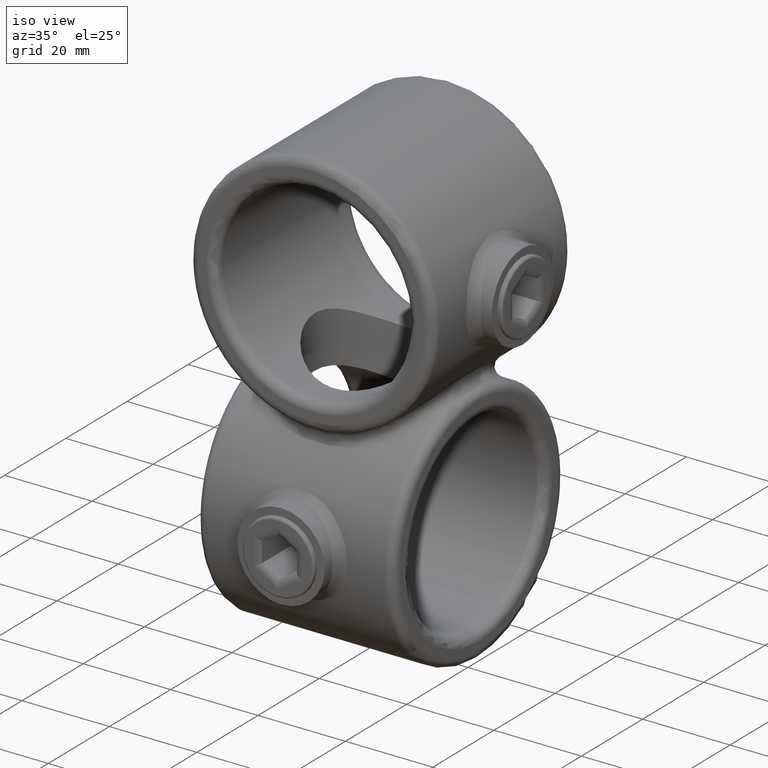
[diagram: clean part render]
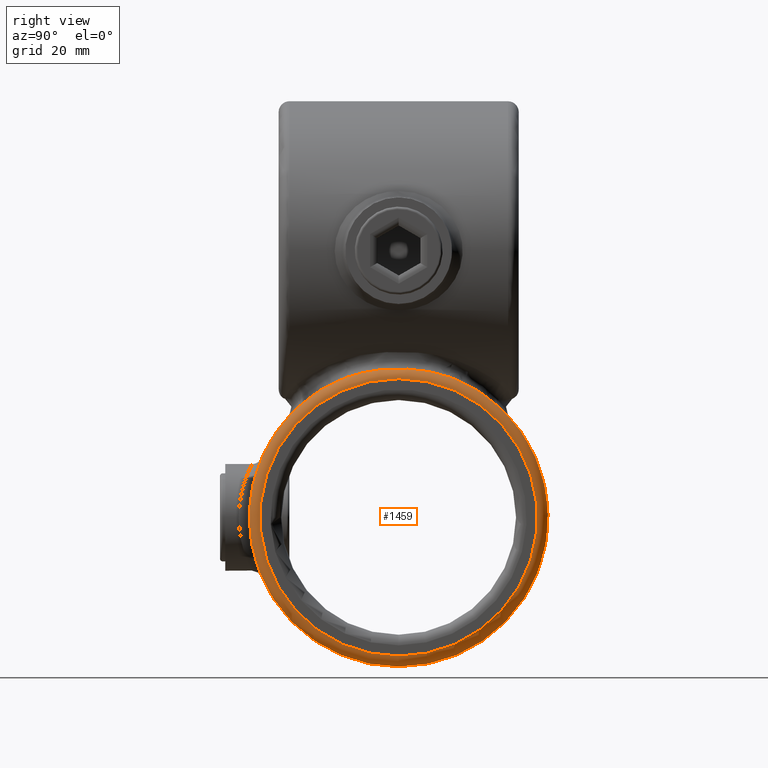
[diagram: tour spotlight — one face highlighted and labeled with its STEP entity id]
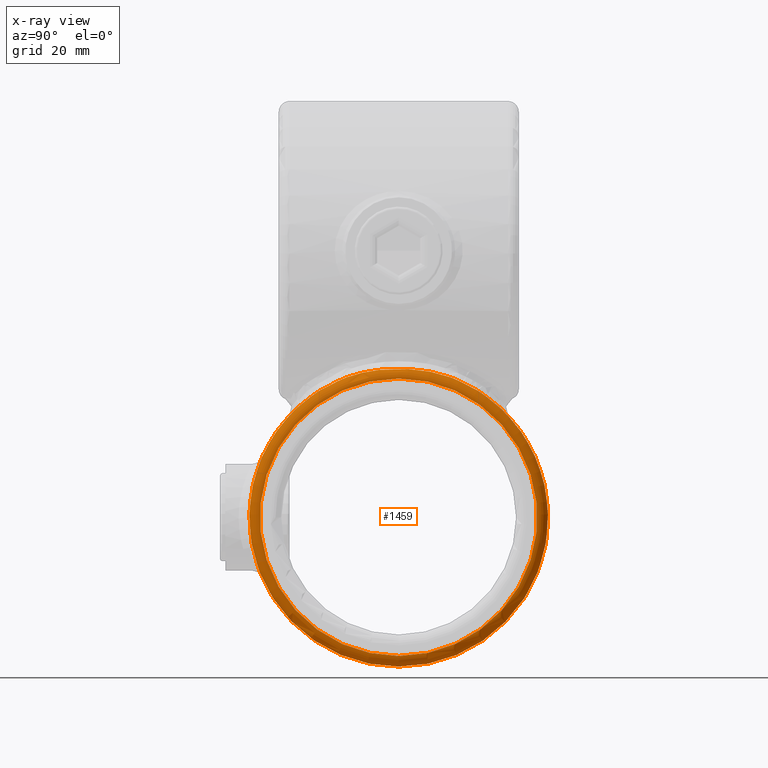
[diagram: x-ray of the same camera — body ghosted, this tour face saturated]
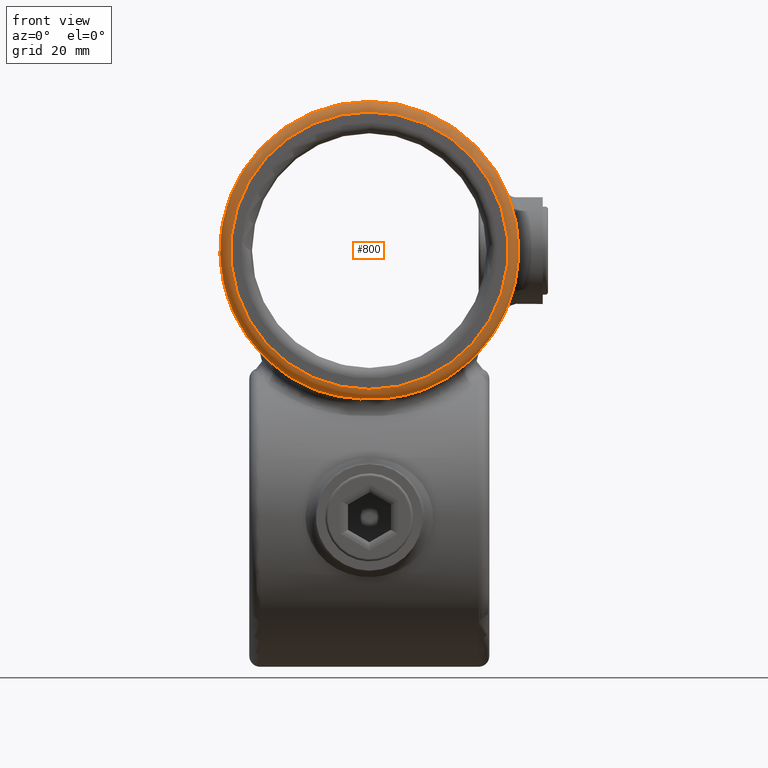
[diagram: tour spotlight — one face highlighted and labeled with its STEP entity id]
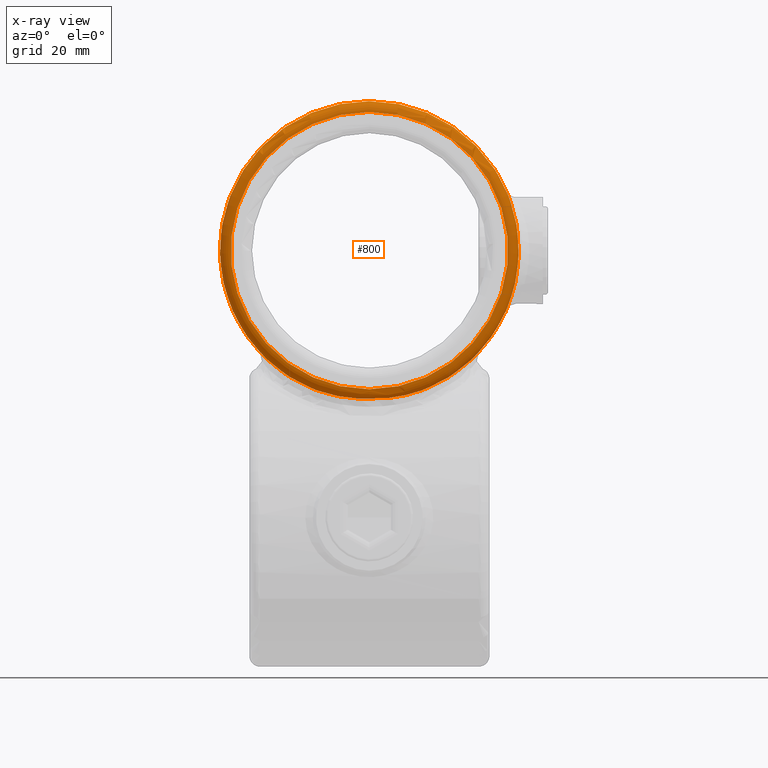
[diagram: x-ray of the same camera — body ghosted, this tour face saturated]
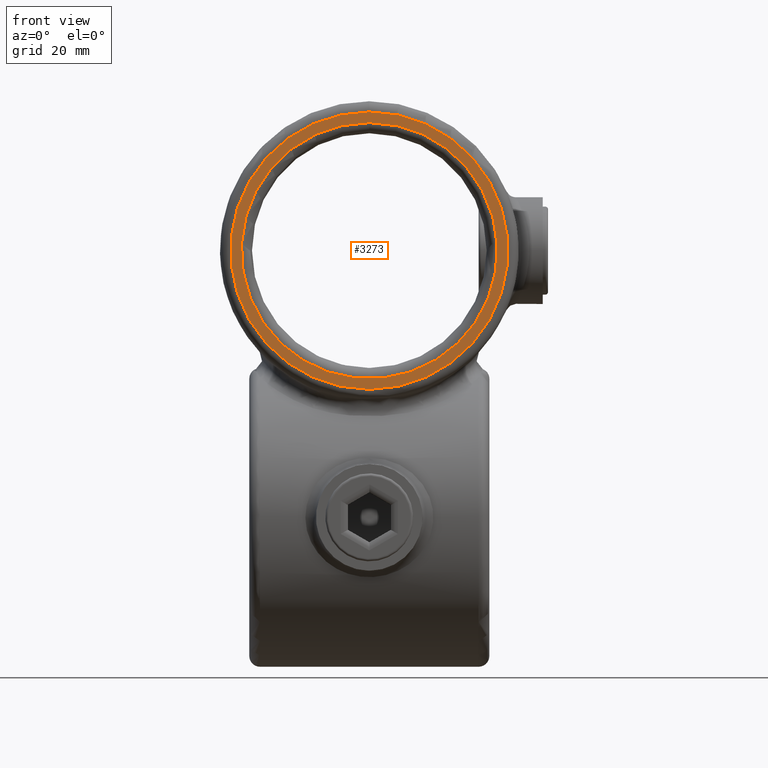
[diagram: tour spotlight — one face highlighted and labeled with its STEP entity id]
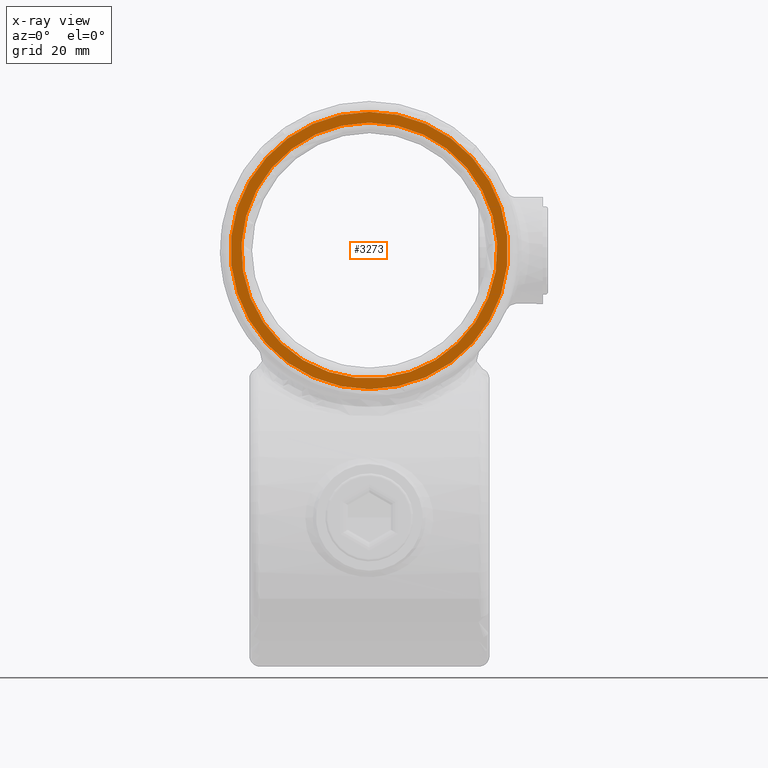
[diagram: x-ray of the same camera — body ghosted, this tour face saturated]
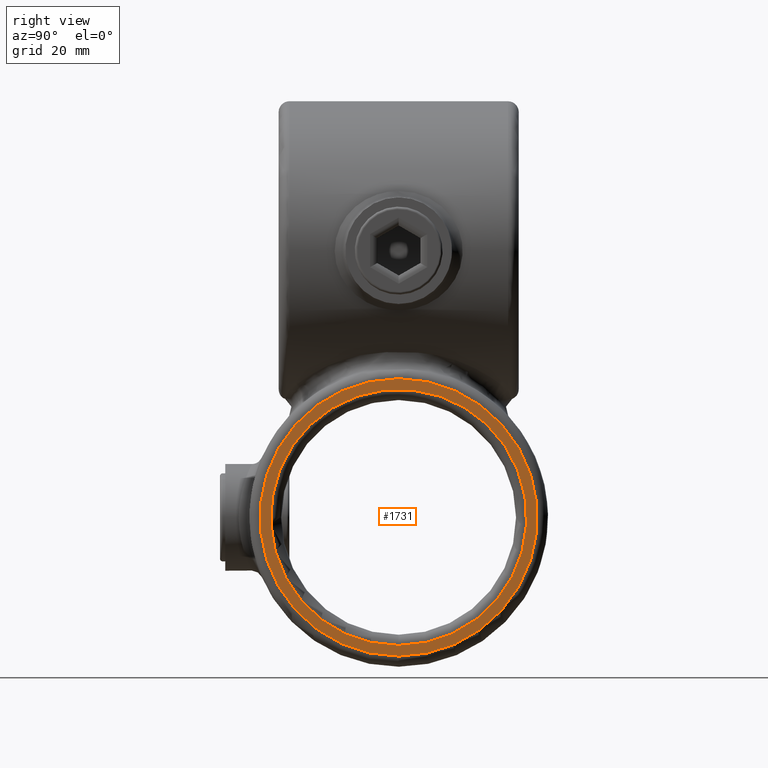
[diagram: tour spotlight — one face highlighted and labeled with its STEP entity id]
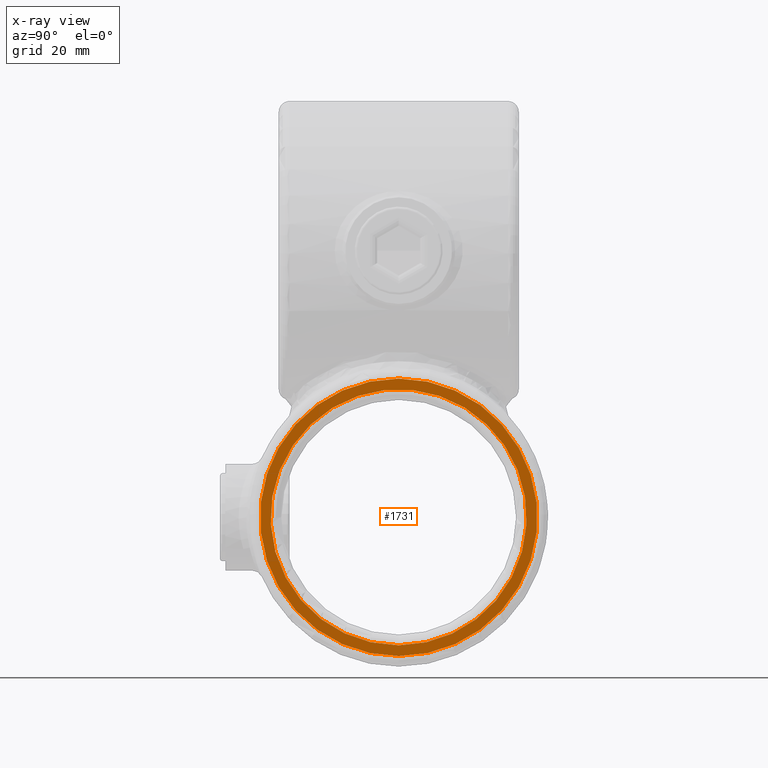
[diagram: x-ray of the same camera — body ghosted, this tour face saturated]
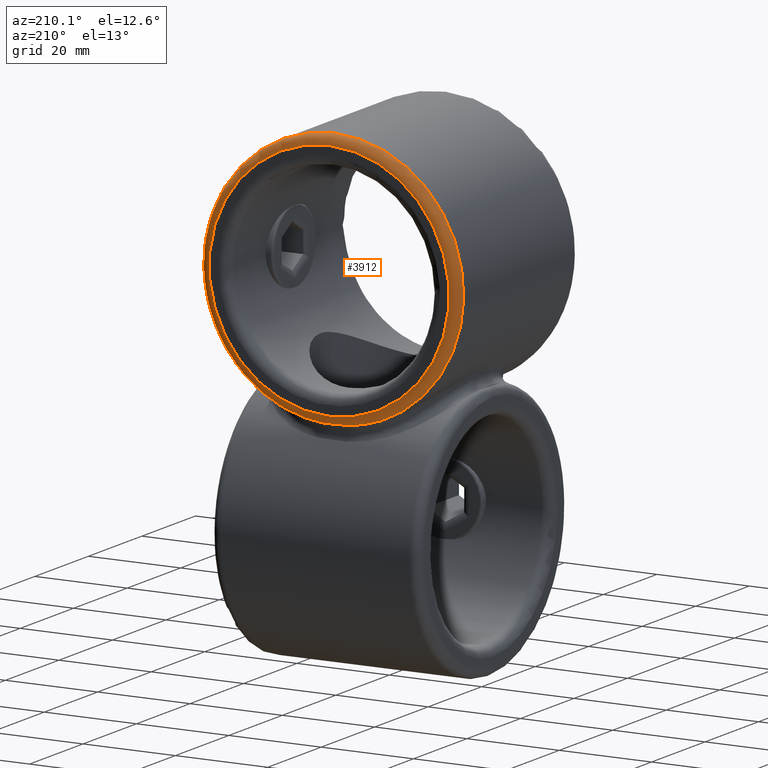
[diagram: tour spotlight — one face highlighted and labeled with its STEP entity id]
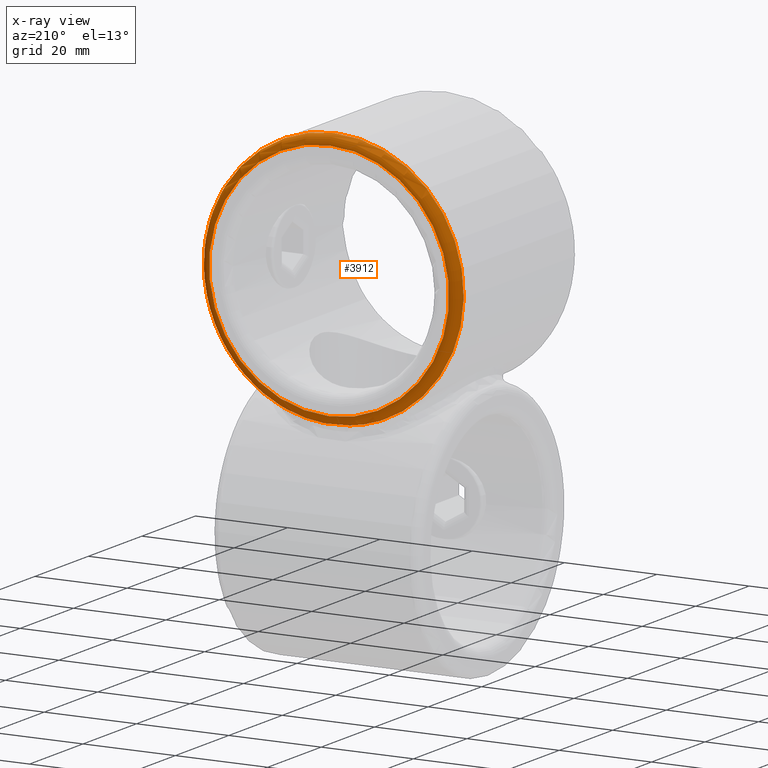
[diagram: x-ray of the same camera — body ghosted, this tour face saturated]
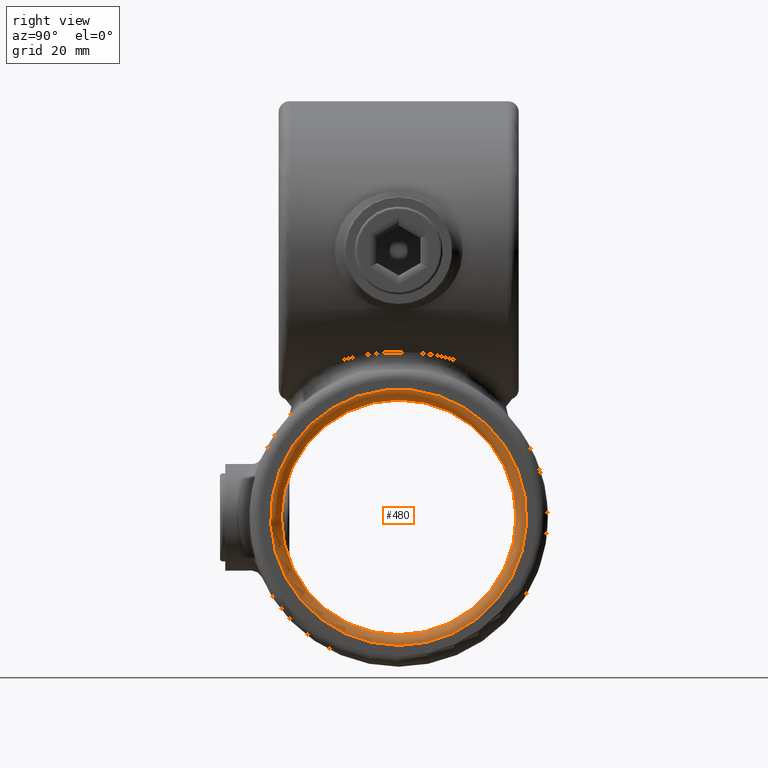
[diagram: tour spotlight — one face highlighted and labeled with its STEP entity id]
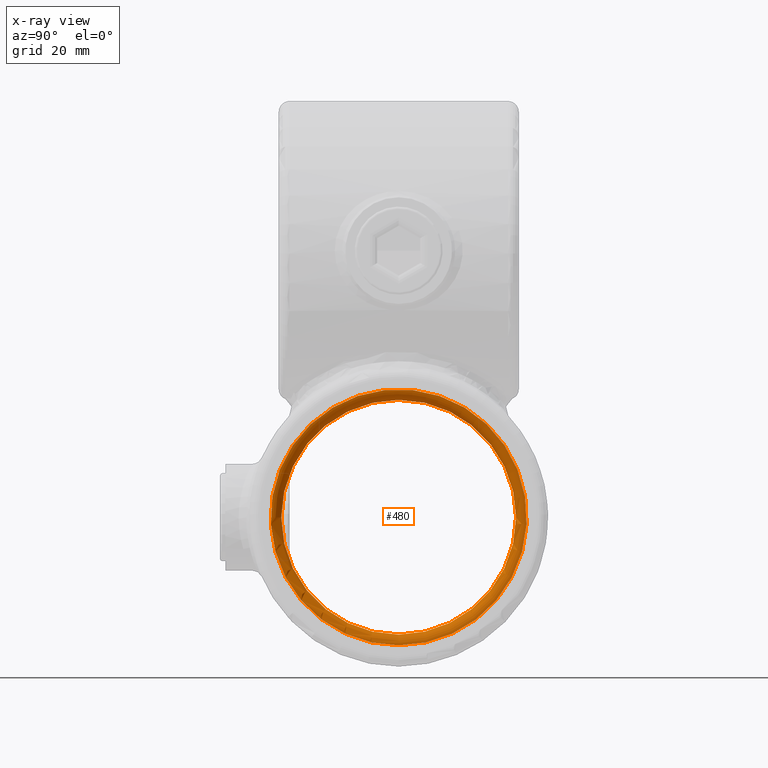
[diagram: x-ray of the same camera — body ghosted, this tour face saturated]
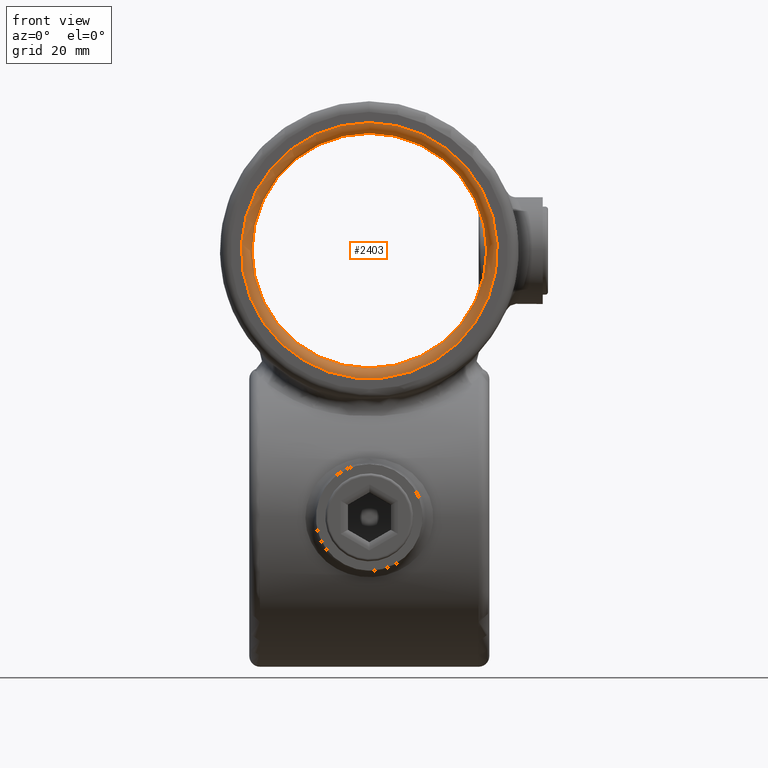
[diagram: tour spotlight — one face highlighted and labeled with its STEP entity id]
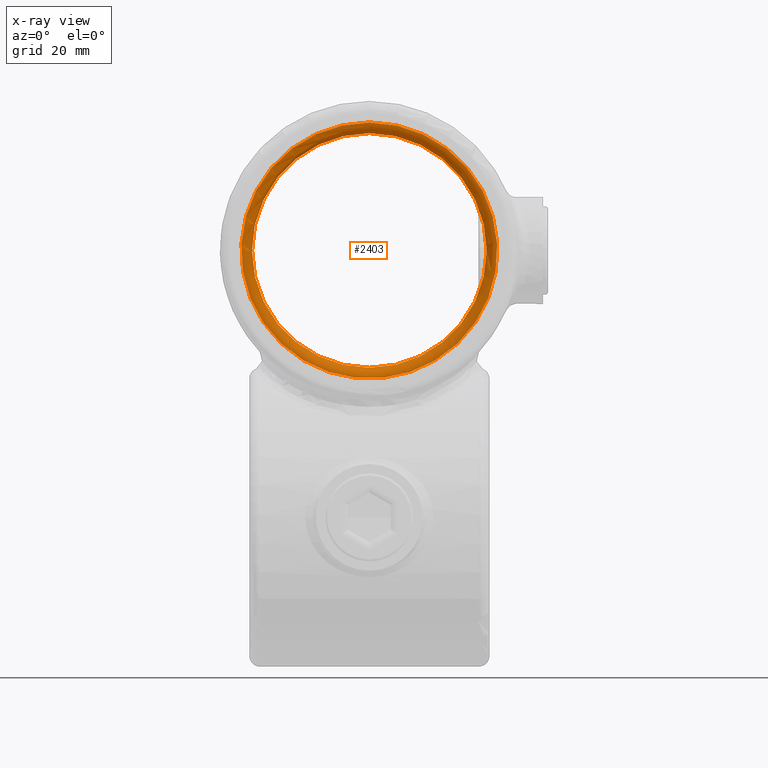
[diagram: x-ray of the same camera — body ghosted, this tour face saturated]
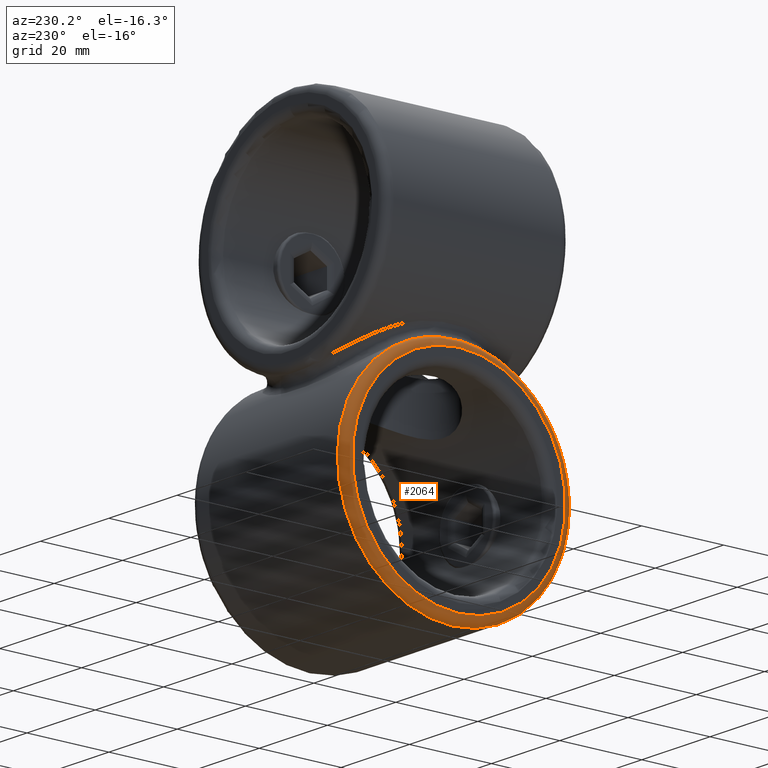
[diagram: tour spotlight — one face highlighted and labeled with its STEP entity id]
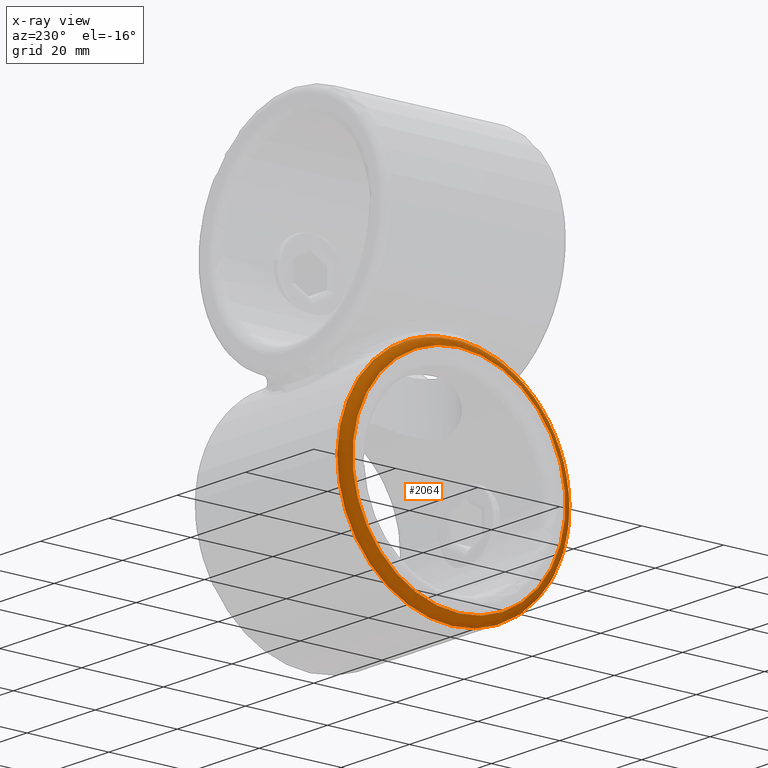
[diagram: x-ray of the same camera — body ghosted, this tour face saturated]
A machine part: a face-by-face anatomy tour. The part has 79 B-rep faces; the first image is the clean iso view, then the 8 largest visible faces are spotlighted one at a time (largest first), each with its STEP entity span.

Face 1 — right view, entity #1459. An x-ray twin of the same camera follows (body ghosted, this face saturated) — the face is partly hidden behind the body. In plain terms, the highlighted toroidal blend (fillet) surface has major radius 26 mm and minor (blend) radius 2 mm.
Definition (entity closure, byte-faithful):
#100 = EDGE_CURVE ( 'NONE', #1247, #2336, #350, .T. ) ;
#121 = DIRECTION ( 'NONE',  ( 0.000000000000000000, 0.000000000000000000, -1.000000000000000000 ) ) ;
#350 = B_SPLINE_CURVE_WITH_KNOTS ( 'NONE', 3,
 ( #3429, #2814, #372, #2578, #2897, #3808, #3837, #1039, #3490, #2254, #450, #761, #1318, #1028, #1939, #1305 ),
 .UNSPECIFIED., .F., .F.,
 ( 4, 2, 2, 2, 2, 2, 2, 4 ),
 ( 0.000000000000000000, 0.002511431423528065216, 0.005022862847056127830, 0.01004572569411225566, 0.01255715711764032044, 0.01506858854116838176, 0.01758001996469644307, 0.02009145138822450785 ),
 .UNSPECIFIED. ) ;
#352 = CARTESIAN_POINT ( 'NONE',  ( 20.49999999999999645, 9.814194670230657280, -23.77631637288887489 ) ) ;
#372 = CARTESIAN_POINT ( 'NONE',  ( 20.78735771320225467, 8.244882252040646620, -23.24752961476865210 ) ) ;
#450 = CARTESIAN_POINT ( 'NONE',  ( 21.17632480160088448, -4.168593731485771059, -22.41752804333555460 ) ) ;
#761 = CARTESIAN_POINT ( 'NONE',  ( 21.05975418159540880, -5.820017429702117440, -22.67947664043222034 ) ) ;
#797 = CARTESIAN_POINT ( 'NONE',  ( 22.50000000000000000, 0.000000000000000000, -76.00000000000001421 ) ) ;
#910 = VERTEX_POINT ( 'NONE', #797 ) ;
#937 = DIRECTION ( 'NONE',  ( -1.000000000000000000, -0.000000000000000000, -0.000000000000000000 ) ) ;
#943 = ORIENTED_EDGE ( 'NONE', *, *, #1174, .F. ) ;
#996 = DIRECTION ( 'NONE',  ( 0.000000000000000000, 0.000000000000000000, -1.000000000000000000 ) ) ;
#1028 = CARTESIAN_POINT ( 'NONE',  ( 20.78731485258109046, -8.244901571429144482, -23.24759838540709467 ) ) ;
#1039 = CARTESIAN_POINT ( 'NONE',  ( 21.28477527319128626, -0.8319980424805155650, -22.16040050830346431 ) ) ;
#1174 = EDGE_CURVE ( 'NONE', #1247, #2336, #3108, .T. ) ;
#1247 = VERTEX_POINT ( 'NONE', #352 ) ;
#1305 = CARTESIAN_POINT ( 'NONE',  ( 20.49999999999999645, -9.814194670230948603, -23.77631637288898503 ) ) ;
#1318 = CARTESIAN_POINT ( 'NONE',  ( 20.98486184421767931, -6.636011239654860283, -22.84380077236888695 ) ) ;
#1459 = ADVANCED_FACE ( 'NONE', ( #2222, #2321 ), #1928, .T. ) ;
#1925 = AXIS2_PLACEMENT_3D ( 'NONE', #2525, #3162, #996 ) ;
#1928 = TOROIDAL_SURFACE ( 'NONE', #3959, 26.00000000000000355, 2.000000000000000000 ) ;
#1939 = CARTESIAN_POINT ( 'NONE',  ( 20.66621859428277119, -9.038248175955159169, -23.48591895745369129 ) ) ;
#2092 = EDGE_LOOP ( 'NONE', ( #943, #3607 ) ) ;
#2222 = FACE_OUTER_BOUND ( 'NONE', #2092, .T. ) ;
#2242 = CARTESIAN_POINT ( 'NONE',  ( 20.49999999999999645, -9.814194670230948603, -23.77631637288898503 ) ) ;
#2254 = CARTESIAN_POINT ( 'NONE',  ( 21.21769738735607902, -3.331358731583571764, -22.32020090912197574 ) ) ;
#2258 = CARTESIAN_POINT ( 'NONE',  ( 20.49999999999999645, 0.000000000000000000, -50.00000000000000000 ) ) ;
#2321 = FACE_OUTER_BOUND ( 'NONE', #2360, .T. ) ;
#2336 = VERTEX_POINT ( 'NONE', #2242 ) ;
#2360 = EDGE_LOOP ( 'NONE', ( #3408 ) ) ;
#2375 = EDGE_CURVE ( 'NONE', #910, #910, #3456, .T. ) ;
#2477 = DIRECTION ( 'NONE',  ( 0.000000000000000000, 0.000000000000000000, -1.000000000000000000 ) ) ;
#2525 = CARTESIAN_POINT ( 'NONE',  ( 22.50000000000000000, 0.000000000000000000, -50.00000000000000000 ) ) ;
#2571 = DIRECTION ( 'NONE',  ( 1.000000000000000000, 0.000000000000000000, 0.000000000000000000 ) ) ;
#2578 = CARTESIAN_POINT ( 'NONE',  ( 20.98528044779500590, 6.632271466999884346, -22.84292623920265441 ) ) ;
#2771 = CARTESIAN_POINT ( 'NONE',  ( 20.49999999999999645, 0.000000000000000000, -50.00000000000000000 ) ) ;
#2814 = CARTESIAN_POINT ( 'NONE',  ( 20.66605683071383126, 9.039003325369986186, -23.48620157157716903 ) ) ;
#2897 = CARTESIAN_POINT ( 'NONE',  ( 21.06041780263169372, 5.812786630905268481, -22.67802611809255353 ) ) ;
#3108 = CIRCLE ( 'NONE', #3545, 27.99999999999999645 ) ;
#3162 = DIRECTION ( 'NONE',  ( 1.000000000000000000, 0.000000000000000000, 0.000000000000000000 ) ) ;
#3408 = ORIENTED_EDGE ( 'NONE', *, *, #2375, .F. ) ;
#3429 = CARTESIAN_POINT ( 'NONE',  ( 20.49999999999999645, 9.814194670230657280, -23.77631637288887489 ) ) ;
#3456 = CIRCLE ( 'NONE', #1925, 26.00000000000001066 ) ;
#3490 = CARTESIAN_POINT ( 'NONE',  ( 21.27181503700357368, -1.664652762210585779, -22.19193588179890497 ) ) ;
#3545 = AXIS2_PLACEMENT_3D ( 'NONE', #2771, #937, #2477 ) ;
#3607 = ORIENTED_EDGE ( 'NONE', *, *, #100, .T. ) ;
#3808 = CARTESIAN_POINT ( 'NONE',  ( 21.23554150836084631, 3.325303751255777041, -22.28437855598422246 ) ) ;
#3837 = CARTESIAN_POINT ( 'NONE',  ( 21.28477569865332342, 1.663955684141808389, -22.16039948243028235 ) ) ;
#3959 = AXIS2_PLACEMENT_3D ( 'NONE', #2258, #2571, #121 ) ;

Face 2 — front view, entity #800. An x-ray twin of the same camera follows (body ghosted, this face saturated) — the face is partly hidden behind the body. In plain terms, the highlighted toroidal blend (fillet) surface has major radius 26 mm and minor (blend) radius 2 mm.
Definition (entity closure, byte-faithful):
#119 = AXIS2_PLACEMENT_3D ( 'NONE', #3283, #2352, #1752 ) ;
#170 = CIRCLE ( 'NONE', #119, 28.00000000000000000 ) ;
#281 = CARTESIAN_POINT ( 'NONE',  ( -0.8319980424802165819, -21.28477527319128981, -27.83959949169654280 ) ) ;
#424 = TOROIDAL_SURFACE ( 'NONE', #1611, 26.00000000000000355, 2.000000000000000000 ) ;
#425 = EDGE_LOOP ( 'NONE', ( #2469 ) ) ;
#484 = CARTESIAN_POINT ( 'NONE',  ( -9.814194670230655504, -20.49999999999999645, -26.22368362711112866 ) ) ;
#528 = CARTESIAN_POINT ( 'NONE',  ( -4.168593731485473519, -21.17632480160090225, -27.58247195666449869 ) ) ;
#800 = ADVANCED_FACE ( 'NONE', ( #1173, #2446 ), #424, .T. ) ;
#828 = CARTESIAN_POINT ( 'NONE',  ( 5.812786630905549146, -21.06041780263166530, -27.32197388190738252 ) ) ;
#966 = AXIS2_PLACEMENT_3D ( 'NONE', #1736, #2392, #2365 ) ;
#1006 = B_SPLINE_CURVE_WITH_KNOTS ( 'NONE', 3,
 ( #3946, #1129, #1805, #3634, #2401, #528, #2378, #1142, #281, #1790, #3332, #828, #3305, #1469, #3962, #1775 ),
 .UNSPECIFIED., .F., .F.,
 ( 4, 2, 2, 2, 2, 2, 2, 4 ),
 ( 0.000000000000000000, 0.002505388296173455438, 0.005010776592346910877, 0.007516164888520366315, 0.01002155318469382175, 0.01503232977704073263, 0.01753771807321418894, 0.02004310636938764351 ),
 .UNSPECIFIED. ) ;
#1129 = CARTESIAN_POINT ( 'NONE',  ( -9.038248175954858965, -20.66621859428282448, -26.51408104254640463 ) ) ;
#1142 = CARTESIAN_POINT ( 'NONE',  ( -1.664652762210287351, -21.27181503700358434, -27.80806411820110924 ) ) ;
#1173 = FACE_OUTER_BOUND ( 'NONE', #425, .T. ) ;
#1445 = EDGE_LOOP ( 'NONE', ( #2569, #1959 ) ) ;
#1464 = CARTESIAN_POINT ( 'NONE',  ( 0.000000000000000000, -20.49999999999999645, 0.000000000000000000 ) ) ;
#1469 = CARTESIAN_POINT ( 'NONE',  ( 8.244882252040929060, -20.78735771320221204, -26.75247038523127330 ) ) ;
#1611 = AXIS2_PLACEMENT_3D ( 'NONE', #1464, #3340, #3693 ) ;
#1736 = CARTESIAN_POINT ( 'NONE',  ( 0.000000000000000000, -22.50000000000000000, 0.000000000000000000 ) ) ;
#1742 = VERTEX_POINT ( 'NONE', #484 ) ;
#1752 = DIRECTION ( 'NONE',  ( 0.000000000000000000, 0.000000000000000000, 1.000000000000000000 ) ) ;
#1775 = CARTESIAN_POINT ( 'NONE',  ( 9.814194670230925510, -20.49999999999999645, -26.22368362711102918 ) ) ;
#1790 = CARTESIAN_POINT ( 'NONE',  ( 1.663955684142105929, -21.28477569865331631, -27.83960051756971055 ) ) ;
#1805 = CARTESIAN_POINT ( 'NONE',  ( -8.244901571428847831, -20.78731485258112599, -26.75240161459299415 ) ) ;
#1861 = EDGE_CURVE ( 'NONE', #3586, #3586, #3288, .T. ) ;
#1959 = ORIENTED_EDGE ( 'NONE', *, *, #3432, .T. ) ;
#2034 = EDGE_CURVE ( 'NONE', #1742, #3005, #170, .T. ) ;
#2352 = DIRECTION ( 'NONE',  ( 0.000000000000000000, 1.000000000000000000, 0.000000000000000000 ) ) ;
#2365 = DIRECTION ( 'NONE',  ( 0.000000000000000000, 0.000000000000000000, 1.000000000000000000 ) ) ;
#2378 = CARTESIAN_POINT ( 'NONE',  ( -3.331358731583277777, -21.21769738735609678, -27.67979909087805979 ) ) ;
#2392 = DIRECTION ( 'NONE',  ( -0.000000000000000000, -1.000000000000000000, -0.000000000000000000 ) ) ;
#2401 = CARTESIAN_POINT ( 'NONE',  ( -5.820017429701819012, -21.05975418159543366, -27.32052335956784361 ) ) ;
#2446 = FACE_OUTER_BOUND ( 'NONE', #1445, .T. ) ;
#2469 = ORIENTED_EDGE ( 'NONE', *, *, #1861, .F. ) ;
#2569 = ORIENTED_EDGE ( 'NONE', *, *, #2034, .F. ) ;
#3005 = VERTEX_POINT ( 'NONE', #3237 ) ;
#3237 = CARTESIAN_POINT ( 'NONE',  ( 9.814194670230925510, -20.49999999999999645, -26.22368362711102918 ) ) ;
#3272 = CARTESIAN_POINT ( 'NONE',  ( 0.000000000000000000, -22.50000000000000000, 26.00000000000000355 ) ) ;
#3283 = CARTESIAN_POINT ( 'NONE',  ( 0.000000000000000000, -20.49999999999999645, 0.000000000000000000 ) ) ;
#3288 = CIRCLE ( 'NONE', #966, 26.00000000000000355 ) ;
#3305 = CARTESIAN_POINT ( 'NONE',  ( 6.632271467000165011, -20.98528044779496682, -27.15707376079729229 ) ) ;
#3332 = CARTESIAN_POINT ( 'NONE',  ( 3.325303751256068363, -21.23554150836083565, -27.71562144401574912 ) ) ;
#3340 = DIRECTION ( 'NONE',  ( 0.000000000000000000, 1.000000000000000000, 0.000000000000000000 ) ) ;
#3432 = EDGE_CURVE ( 'NONE', #1742, #3005, #1006, .T. ) ;
#3586 = VERTEX_POINT ( 'NONE', #3272 ) ;
#3634 = CARTESIAN_POINT ( 'NONE',  ( -6.636011239654557414, -20.98486184421770773, -27.15619922763117344 ) ) ;
#3693 = DIRECTION ( 'NONE',  ( 0.000000000000000000, 0.000000000000000000, 1.000000000000000000 ) ) ;
#3946 = CARTESIAN_POINT ( 'NONE',  ( -9.814194670230655504, -20.49999999999999645, -26.22368362711112866 ) ) ;
#3962 = CARTESIAN_POINT ( 'NONE',  ( 9.039003325370270403, -20.66605683071378152, -26.51379842842275636 ) ) ;

Face 3 — front view, entity #3273. An x-ray twin of the same camera follows (body ghosted, this face saturated) — the face is partly hidden behind the body. In plain terms, the highlighted planar face has unit normal (0, 1, 0).
Definition (entity closure, byte-faithful):
#58 = CARTESIAN_POINT ( 'NONE',  ( 0.000000000000000000, -22.50000000000000000, 0.000000000000000000 ) ) ;
#188 = FACE_OUTER_BOUND ( 'NONE', #1967, .T. ) ;
#288 = AXIS2_PLACEMENT_3D ( 'NONE', #58, #2188, #3472 ) ;
#662 = ORIENTED_EDGE ( 'NONE', *, *, #2195, .T. ) ;
#682 = ORIENTED_EDGE ( 'NONE', *, *, #1861, .T. ) ;
#926 = EDGE_LOOP ( 'NONE', ( #662 ) ) ;
#966 = AXIS2_PLACEMENT_3D ( 'NONE', #1736, #2392, #2365 ) ;
#1003 = DIRECTION ( 'NONE',  ( 0.000000000000000000, 1.000000000000000000, 0.000000000000000000 ) ) ;
#1067 = CARTESIAN_POINT ( 'NONE',  ( 0.000000000000000000, -22.50000000000000000, 24.00000000000000000 ) ) ;
#1237 = CIRCLE ( 'NONE', #2991, 24.00000000000000000 ) ;
#1602 = DIRECTION ( 'NONE',  ( 0.000000000000000000, 0.000000000000000000, 1.000000000000000000 ) ) ;
#1633 = CARTESIAN_POINT ( 'NONE',  ( 0.000000000000000000, -22.50000000000000000, 0.000000000000000000 ) ) ;
#1736 = CARTESIAN_POINT ( 'NONE',  ( 0.000000000000000000, -22.50000000000000000, 0.000000000000000000 ) ) ;
#1861 = EDGE_CURVE ( 'NONE', #3586, #3586, #3288, .T. ) ;
#1967 = EDGE_LOOP ( 'NONE', ( #682 ) ) ;
#2188 = DIRECTION ( 'NONE',  ( 0.000000000000000000, 1.000000000000000000, 0.000000000000000000 ) ) ;
#2195 = EDGE_CURVE ( 'NONE', #3383, #3383, #1237, .T. ) ;
#2365 = DIRECTION ( 'NONE',  ( 0.000000000000000000, 0.000000000000000000, 1.000000000000000000 ) ) ;
#2392 = DIRECTION ( 'NONE',  ( -0.000000000000000000, -1.000000000000000000, -0.000000000000000000 ) ) ;
#2991 = AXIS2_PLACEMENT_3D ( 'NONE', #1633, #1003, #1602 ) ;
#3272 = CARTESIAN_POINT ( 'NONE',  ( 0.000000000000000000, -22.50000000000000000, 26.00000000000000355 ) ) ;
#3273 = ADVANCED_FACE ( 'NONE', ( #3947, #188 ), #3737, .F. ) ;
#3288 = CIRCLE ( 'NONE', #966, 26.00000000000000355 ) ;
#3383 = VERTEX_POINT ( 'NONE', #1067 ) ;
#3472 = DIRECTION ( 'NONE',  ( 0.000000000000000000, -0.000000000000000000, 1.000000000000000000 ) ) ;
#3586 = VERTEX_POINT ( 'NONE', #3272 ) ;
#3737 = PLANE ( 'NONE',  #288 ) ;
#3947 = FACE_BOUND ( 'NONE', #926, .T. ) ;

Face 4 — right view, entity #1731. An x-ray twin of the same camera follows (body ghosted, this face saturated) — the face is partly hidden behind the body. In plain terms, the highlighted planar face has unit normal (1, 0, 0).
Definition (entity closure, byte-faithful):
#37 = EDGE_CURVE ( 'NONE', #1010, #1010, #1905, .T. ) ;
#797 = CARTESIAN_POINT ( 'NONE',  ( 22.50000000000000000, 0.000000000000000000, -76.00000000000001421 ) ) ;
#910 = VERTEX_POINT ( 'NONE', #797 ) ;
#931 = EDGE_LOOP ( 'NONE', ( #2616 ) ) ;
#996 = DIRECTION ( 'NONE',  ( 0.000000000000000000, 0.000000000000000000, -1.000000000000000000 ) ) ;
#1010 = VERTEX_POINT ( 'NONE', #1364 ) ;
#1127 = EDGE_LOOP ( 'NONE', ( #1952 ) ) ;
#1364 = CARTESIAN_POINT ( 'NONE',  ( 22.50000000000000000, 0.000000000000000000, -73.99999999999998579 ) ) ;
#1731 = ADVANCED_FACE ( 'NONE', ( #1836, #2564 ), #3661, .T. ) ;
#1803 = DIRECTION ( 'NONE',  ( 1.000000000000000000, 0.000000000000000000, 0.000000000000000000 ) ) ;
#1824 = AXIS2_PLACEMENT_3D ( 'NONE', #3859, #1803, #2605 ) ;
#1836 = FACE_BOUND ( 'NONE', #1127, .T. ) ;
#1905 = CIRCLE ( 'NONE', #3269, 23.99999999999997868 ) ;
#1925 = AXIS2_PLACEMENT_3D ( 'NONE', #2525, #3162, #996 ) ;
#1952 = ORIENTED_EDGE ( 'NONE', *, *, #37, .T. ) ;
#2193 = DIRECTION ( 'NONE',  ( -1.000000000000000000, -0.000000000000000000, -0.000000000000000000 ) ) ;
#2375 = EDGE_CURVE ( 'NONE', #910, #910, #3456, .T. ) ;
#2522 = DIRECTION ( 'NONE',  ( 0.000000000000000000, 0.000000000000000000, -1.000000000000000000 ) ) ;
#2525 = CARTESIAN_POINT ( 'NONE',  ( 22.50000000000000000, 0.000000000000000000, -50.00000000000000000 ) ) ;
#2564 = FACE_OUTER_BOUND ( 'NONE', #931, .T. ) ;
#2605 = DIRECTION ( 'NONE',  ( 0.000000000000000000, 0.000000000000000000, -1.000000000000000000 ) ) ;
#2616 = ORIENTED_EDGE ( 'NONE', *, *, #2375, .T. ) ;
#3106 = CARTESIAN_POINT ( 'NONE',  ( 22.50000000000000000, 0.000000000000000000, -50.00000000000000000 ) ) ;
#3162 = DIRECTION ( 'NONE',  ( 1.000000000000000000, 0.000000000000000000, 0.000000000000000000 ) ) ;
#3269 = AXIS2_PLACEMENT_3D ( 'NONE', #3106, #2193, #2522 ) ;
#3456 = CIRCLE ( 'NONE', #1925, 26.00000000000001066 ) ;
#3661 = PLANE ( 'NONE',  #1824 ) ;
#3859 = CARTESIAN_POINT ( 'NONE',  ( 22.50000000000000000, 0.000000000000000000, -50.00000000000000000 ) ) ;

Face 5 — auxiliary view, entity #3912. An x-ray twin of the same camera follows (body ghosted, this face saturated) — the face is partly hidden behind the body. In plain terms, the highlighted toroidal blend (fillet) surface has major radius 26 mm and minor (blend) radius 2 mm.
Definition (entity closure, byte-faithful):
#25 = FACE_OUTER_BOUND ( 'NONE', #826, .T. ) ;
#39 = CARTESIAN_POINT ( 'NONE',  ( -9.814194670230680373, 20.49999999999999645, -26.22368362711111800 ) ) ;
#112 = EDGE_LOOP ( 'NONE', ( #3965, #1020 ) ) ;
#379 = DIRECTION ( 'NONE',  ( 0.000000000000000000, 0.000000000000000000, 1.000000000000000000 ) ) ;
#385 = CARTESIAN_POINT ( 'NONE',  ( 0.8319980424804017671, 21.28477527319128626, -27.83959949169654990 ) ) ;
#427 = CARTESIAN_POINT ( 'NONE',  ( 5.820017429701963785, 21.05975418159542301, -27.32052335956781519 ) ) ;
#459 = DIRECTION ( 'NONE',  ( 0.000000000000000000, 0.000000000000000000, 1.000000000000000000 ) ) ;
#482 = AXIS2_PLACEMENT_3D ( 'NONE', #1986, #2893, #459 ) ;
#649 = B_SPLINE_CURVE_WITH_KNOTS ( 'NONE', 3,
 ( #2459, #2768, #1631, #1908, #427, #1260, #3794, #709, #385, #2205, #3458, #697, #3491, #3476, #1941, #3766 ),
 .UNSPECIFIED., .F., .F.,
 ( 4, 2, 2, 2, 2, 2, 2, 4 ),
 ( 5.204170427930421283E-18, 0.002505388296173446331, 0.005010776592346887458, 0.007516164888520329886, 0.01002155318469376971, 0.01503232977704065457, 0.01753771807321409526, 0.02004310636938753248 ),
 .UNSPECIFIED. ) ;
#697 = CARTESIAN_POINT ( 'NONE',  ( -5.812786630905320884, 21.06041780263169372, -27.32197388190743226 ) ) ;
#709 = CARTESIAN_POINT ( 'NONE',  ( 1.664652762210464543, 21.27181503700357723, -27.80806411820111279 ) ) ;
#724 = CIRCLE ( 'NONE', #482, 28.00000000000000000 ) ;
#812 = AXIS2_PLACEMENT_3D ( 'NONE', #2721, #1319, #379 ) ;
#826 = EDGE_LOOP ( 'NONE', ( #1918 ) ) ;
#1020 = ORIENTED_EDGE ( 'NONE', *, *, #2698, .T. ) ;
#1037 = CARTESIAN_POINT ( 'NONE',  ( 0.000000000000000000, 20.49999999999999645, 0.000000000000000000 ) ) ;
#1233 = VERTEX_POINT ( 'NONE', #3410 ) ;
#1240 = VERTEX_POINT ( 'NONE', #39 ) ;
#1260 = CARTESIAN_POINT ( 'NONE',  ( 4.168593731485627174, 21.17632480160089514, -27.58247195666449159 ) ) ;
#1319 = DIRECTION ( 'NONE',  ( 0.000000000000000000, 1.000000000000000000, 0.000000000000000000 ) ) ;
#1410 = CARTESIAN_POINT ( 'NONE',  ( 0.000000000000000000, 22.50000000000000000, 26.00000000000000355 ) ) ;
#1539 = FACE_OUTER_BOUND ( 'NONE', #112, .T. ) ;
#1631 = CARTESIAN_POINT ( 'NONE',  ( 8.244901571428975728, 20.78731485258110823, -26.75240161459295507 ) ) ;
#1652 = DIRECTION ( 'NONE',  ( 0.000000000000000000, 0.000000000000000000, 1.000000000000000000 ) ) ;
#1908 = CARTESIAN_POINT ( 'NONE',  ( 6.636011239654697746, 20.98486184421770062, -27.15619922763114502 ) ) ;
#1918 = ORIENTED_EDGE ( 'NONE', *, *, #2895, .F. ) ;
#1941 = CARTESIAN_POINT ( 'NONE',  ( -9.039003325370019937, 20.66605683071383126, -26.51379842842282741 ) ) ;
#1986 = CARTESIAN_POINT ( 'NONE',  ( 0.000000000000000000, 20.49999999999999645, 0.000000000000000000 ) ) ;
#2205 = CARTESIAN_POINT ( 'NONE',  ( -1.663955684141899871, 21.28477569865331986, -27.83960051756971410 ) ) ;
#2423 = AXIS2_PLACEMENT_3D ( 'NONE', #1037, #3539, #1652 ) ;
#2459 = CARTESIAN_POINT ( 'NONE',  ( 9.814194670230769191, 20.49999999999999645, -26.22368362711108603 ) ) ;
#2533 = CIRCLE ( 'NONE', #812, 26.00000000000000355 ) ;
#2698 = EDGE_CURVE ( 'NONE', #1233, #1240, #649, .T. ) ;
#2721 = CARTESIAN_POINT ( 'NONE',  ( 0.000000000000000000, 22.50000000000000000, 0.000000000000000000 ) ) ;
#2768 = CARTESIAN_POINT ( 'NONE',  ( 9.038248175954985086, 20.66621859428278185, -26.51408104254637976 ) ) ;
#2893 = DIRECTION ( 'NONE',  ( -0.000000000000000000, -1.000000000000000000, -0.000000000000000000 ) ) ;
#2895 = EDGE_CURVE ( 'NONE', #2999, #2999, #2533, .T. ) ;
#2999 = VERTEX_POINT ( 'NONE', #1410 ) ;
#3410 = CARTESIAN_POINT ( 'NONE',  ( 9.814194670230769191, 20.49999999999999645, -26.22368362711108603 ) ) ;
#3458 = CARTESIAN_POINT ( 'NONE',  ( -3.325303751255855644, 21.23554150836084276, -27.71562144401577399 ) ) ;
#3476 = CARTESIAN_POINT ( 'NONE',  ( -8.244882252040685700, 20.78735771320225467, -26.75247038523135501 ) ) ;
#3491 = CARTESIAN_POINT ( 'NONE',  ( -6.632271466999934972, 20.98528044779499524, -27.15707376079734914 ) ) ;
#3539 = DIRECTION ( 'NONE',  ( 0.000000000000000000, 1.000000000000000000, 0.000000000000000000 ) ) ;
#3696 = EDGE_CURVE ( 'NONE', #1233, #1240, #724, .T. ) ;
#3766 = CARTESIAN_POINT ( 'NONE',  ( -9.814194670230680373, 20.49999999999999645, -26.22368362711111800 ) ) ;
#3794 = CARTESIAN_POINT ( 'NONE',  ( 3.331358731583440314, 21.21769738735608257, -27.67979909087804558 ) ) ;
#3873 = TOROIDAL_SURFACE ( 'NONE', #2423, 26.00000000000000355, 2.000000000000000000 ) ;
#3912 = ADVANCED_FACE ( 'NONE', ( #1539, #25 ), #3873, .T. ) ;
#3965 = ORIENTED_EDGE ( 'NONE', *, *, #3696, .F. ) ;

Face 6 — right view, entity #480. An x-ray twin of the same camera follows (body ghosted, this face saturated) — the face is partly hidden behind the body. In plain terms, the highlighted toroidal blend (fillet) surface has major radius 24 mm and minor (blend) radius 2 mm.
Definition (entity closure, byte-faithful):
#37 = EDGE_CURVE ( 'NONE', #1010, #1010, #1905, .T. ) ;
#98 = CIRCLE ( 'NONE', #3901, 21.99999999999997868 ) ;
#346 = EDGE_CURVE ( 'NONE', #3823, #3823, #98, .T. ) ;
#375 = FACE_OUTER_BOUND ( 'NONE', #1839, .T. ) ;
#472 = DIRECTION ( 'NONE',  ( 1.000000000000000000, 0.000000000000000000, 0.000000000000000000 ) ) ;
#480 = ADVANCED_FACE ( 'NONE', ( #3361, #375 ), #839, .T. ) ;
#503 = CARTESIAN_POINT ( 'NONE',  ( 20.49999999999999645, 0.000000000000000000, -50.00000000000000000 ) ) ;
#516 = DIRECTION ( 'NONE',  ( 0.000000000000000000, 0.000000000000000000, -1.000000000000000000 ) ) ;
#839 = TOROIDAL_SURFACE ( 'NONE', #3762, 23.99999999999997868, 2.000000000000000000 ) ;
#1010 = VERTEX_POINT ( 'NONE', #1364 ) ;
#1130 = DIRECTION ( 'NONE',  ( 1.000000000000000000, 0.000000000000000000, 0.000000000000000000 ) ) ;
#1309 = EDGE_LOOP ( 'NONE', ( #1478 ) ) ;
#1364 = CARTESIAN_POINT ( 'NONE',  ( 22.50000000000000000, 0.000000000000000000, -73.99999999999998579 ) ) ;
#1478 = ORIENTED_EDGE ( 'NONE', *, *, #37, .F. ) ;
#1839 = EDGE_LOOP ( 'NONE', ( #2585 ) ) ;
#1905 = CIRCLE ( 'NONE', #3269, 23.99999999999997868 ) ;
#2193 = DIRECTION ( 'NONE',  ( -1.000000000000000000, -0.000000000000000000, -0.000000000000000000 ) ) ;
#2364 = CARTESIAN_POINT ( 'NONE',  ( 20.49999999999999645, 0.000000000000000000, -50.00000000000000000 ) ) ;
#2522 = DIRECTION ( 'NONE',  ( 0.000000000000000000, 0.000000000000000000, -1.000000000000000000 ) ) ;
#2585 = ORIENTED_EDGE ( 'NONE', *, *, #346, .F. ) ;
#3106 = CARTESIAN_POINT ( 'NONE',  ( 22.50000000000000000, 0.000000000000000000, -50.00000000000000000 ) ) ;
#3269 = AXIS2_PLACEMENT_3D ( 'NONE', #3106, #2193, #2522 ) ;
#3361 = FACE_OUTER_BOUND ( 'NONE', #1309, .T. ) ;
#3623 = DIRECTION ( 'NONE',  ( 0.000000000000000000, 0.000000000000000000, -1.000000000000000000 ) ) ;
#3762 = AXIS2_PLACEMENT_3D ( 'NONE', #2364, #1130, #3623 ) ;
#3805 = CARTESIAN_POINT ( 'NONE',  ( 20.49999999999999645, 0.000000000000000000, -71.99999999999998579 ) ) ;
#3823 = VERTEX_POINT ( 'NONE', #3805 ) ;
#3901 = AXIS2_PLACEMENT_3D ( 'NONE', #503, #472, #516 ) ;

Face 7 — front view, entity #2403. An x-ray twin of the same camera follows (body ghosted, this face saturated) — the face is partly hidden behind the body. In plain terms, the highlighted toroidal blend (fillet) surface has major radius 24 mm and minor (blend) radius 2 mm.
Definition (entity closure, byte-faithful):
#326 = FACE_OUTER_BOUND ( 'NONE', #848, .T. ) ;
#362 = AXIS2_PLACEMENT_3D ( 'NONE', #2824, #691, #1892 ) ;
#384 = EDGE_LOOP ( 'NONE', ( #1596 ) ) ;
#619 = EDGE_CURVE ( 'NONE', #3681, #3681, #798, .T. ) ;
#691 = DIRECTION ( 'NONE',  ( 0.000000000000000000, 1.000000000000000000, 0.000000000000000000 ) ) ;
#798 = CIRCLE ( 'NONE', #2652, 22.00000000000000000 ) ;
#848 = EDGE_LOOP ( 'NONE', ( #2929 ) ) ;
#1003 = DIRECTION ( 'NONE',  ( 0.000000000000000000, 1.000000000000000000, 0.000000000000000000 ) ) ;
#1067 = CARTESIAN_POINT ( 'NONE',  ( 0.000000000000000000, -22.50000000000000000, 24.00000000000000000 ) ) ;
#1189 = DIRECTION ( 'NONE',  ( 0.000000000000000000, 0.000000000000000000, 1.000000000000000000 ) ) ;
#1237 = CIRCLE ( 'NONE', #2991, 24.00000000000000000 ) ;
#1560 = CARTESIAN_POINT ( 'NONE',  ( 0.000000000000000000, -20.49999999999999645, 0.000000000000000000 ) ) ;
#1596 = ORIENTED_EDGE ( 'NONE', *, *, #619, .F. ) ;
#1602 = DIRECTION ( 'NONE',  ( 0.000000000000000000, 0.000000000000000000, 1.000000000000000000 ) ) ;
#1633 = CARTESIAN_POINT ( 'NONE',  ( 0.000000000000000000, -22.50000000000000000, 0.000000000000000000 ) ) ;
#1892 = DIRECTION ( 'NONE',  ( 0.000000000000000000, 0.000000000000000000, 1.000000000000000000 ) ) ;
#2059 = TOROIDAL_SURFACE ( 'NONE', #362, 24.00000000000000000, 2.000000000000000000 ) ;
#2161 = DIRECTION ( 'NONE',  ( -0.000000000000000000, -1.000000000000000000, -0.000000000000000000 ) ) ;
#2195 = EDGE_CURVE ( 'NONE', #3383, #3383, #1237, .T. ) ;
#2403 = ADVANCED_FACE ( 'NONE', ( #2777, #326 ), #2059, .T. ) ;
#2652 = AXIS2_PLACEMENT_3D ( 'NONE', #1560, #2161, #1189 ) ;
#2777 = FACE_OUTER_BOUND ( 'NONE', #384, .T. ) ;
#2824 = CARTESIAN_POINT ( 'NONE',  ( 0.000000000000000000, -20.49999999999999645, 0.000000000000000000 ) ) ;
#2929 = ORIENTED_EDGE ( 'NONE', *, *, #2195, .F. ) ;
#2991 = AXIS2_PLACEMENT_3D ( 'NONE', #1633, #1003, #1602 ) ;
#3383 = VERTEX_POINT ( 'NONE', #1067 ) ;
#3564 = CARTESIAN_POINT ( 'NONE',  ( 0.000000000000000000, -20.49999999999999645, 22.00000000000000000 ) ) ;
#3681 = VERTEX_POINT ( 'NONE', #3564 ) ;

Face 8 — auxiliary view, entity #2064. An x-ray twin of the same camera follows (body ghosted, this face saturated) — the face is partly hidden behind the body. In plain terms, the highlighted toroidal blend (fillet) surface has major radius 26 mm and minor (blend) radius 2 mm.
Definition (entity closure, byte-faithful):
#48 = CIRCLE ( 'NONE', #2854, 27.99999999999999645 ) ;
#135 = DIRECTION ( 'NONE',  ( -1.000000000000000000, -0.000000000000000000, -0.000000000000000000 ) ) ;
#137 = CARTESIAN_POINT ( 'NONE',  ( -20.98486184421770417, 6.636011239654583171, -22.84380077236883011 ) ) ;
#149 = CARTESIAN_POINT ( 'NONE',  ( -20.66621859428281738, 9.038248175954871400, -23.48591895745358826 ) ) ;
#278 = DIRECTION ( 'NONE',  ( 0.000000000000000000, 0.000000000000000000, -1.000000000000000000 ) ) ;
#376 = B_SPLINE_CURVE_WITH_KNOTS ( 'NONE', 3,
 ( #2612, #3187, #1974, #3513, #752, #2880, #2599, #1323, #432, #2917, #3816, #3202, #137, #457, #149, #1024 ),
 .UNSPECIFIED., .F., .F.,
 ( 4, 2, 2, 2, 2, 2, 2, 4 ),
 ( 9.341771812940338307E-18, 0.002511431423528055241, 0.005022862847056102677, 0.01004572569411219841, 0.01255715711764024585, 0.01506858854116829328, 0.01758001996469634245, 0.02009145138822439336 ),
 .UNSPECIFIED. ) ;
#432 = CARTESIAN_POINT ( 'NONE',  ( -21.27181503700357723, 1.664652762210334425, -22.19193588179889431 ) ) ;
#457 = CARTESIAN_POINT ( 'NONE',  ( -20.78731485258112599, 8.244901571428863818, -23.24759838540701651 ) ) ;
#474 = EDGE_LOOP ( 'NONE', ( #3958, #3834 ) ) ;
#538 = CIRCLE ( 'NONE', #1239, 26.00000000000001066 ) ;
#710 = AXIS2_PLACEMENT_3D ( 'NONE', #1157, #3333, #974 ) ;
#752 = CARTESIAN_POINT ( 'NONE',  ( -21.06041780263167951, -5.812786630905469210, -22.67802611809259616 ) ) ;
#822 = EDGE_CURVE ( 'NONE', #1884, #3573, #48, .T. ) ;
#974 = DIRECTION ( 'NONE',  ( 0.000000000000000000, 0.000000000000000000, -1.000000000000000000 ) ) ;
#976 = EDGE_CURVE ( 'NONE', #1884, #3573, #376, .T. ) ;
#1024 = CARTESIAN_POINT ( 'NONE',  ( -20.49999999999999645, 9.814194670230664386, -23.77631637288887845 ) ) ;
#1157 = CARTESIAN_POINT ( 'NONE',  ( -20.49999999999999645, 0.000000000000000000, -50.00000000000000000 ) ) ;
#1239 = AXIS2_PLACEMENT_3D ( 'NONE', #1926, #135, #2845 ) ;
#1323 = CARTESIAN_POINT ( 'NONE',  ( -21.28477527319128626, 0.8319980424802668750, -22.16040050830345365 ) ) ;
#1495 = ORIENTED_EDGE ( 'NONE', *, *, #2278, .F. ) ;
#1792 = FACE_OUTER_BOUND ( 'NONE', #474, .T. ) ;
#1884 = VERTEX_POINT ( 'NONE', #3613 ) ;
#1926 = CARTESIAN_POINT ( 'NONE',  ( -22.50000000000000000, 0.000000000000000000, -50.00000000000000000 ) ) ;
#1974 = CARTESIAN_POINT ( 'NONE',  ( -20.78735771320222625, -8.244882252040833137, -23.24752961476871604 ) ) ;
#2064 = ADVANCED_FACE ( 'NONE', ( #3434, #1792 ), #2618, .T. ) ;
#2111 = CARTESIAN_POINT ( 'NONE',  ( -20.49999999999999645, 0.000000000000000000, -50.00000000000000000 ) ) ;
#2278 = EDGE_CURVE ( 'NONE', #3188, #3188, #538, .T. ) ;
#2475 = EDGE_LOOP ( 'NONE', ( #1495 ) ) ;
#2599 = CARTESIAN_POINT ( 'NONE',  ( -21.28477569865331986, -1.663955684142042424, -22.16039948243029656 ) ) ;
#2612 = CARTESIAN_POINT ( 'NONE',  ( -20.49999999999999645, -9.814194670230827811, -23.77631637288894240 ) ) ;
#2618 = TOROIDAL_SURFACE ( 'NONE', #710, 26.00000000000000355, 2.000000000000000000 ) ;
#2655 = CARTESIAN_POINT ( 'NONE',  ( -22.50000000000000000, 0.000000000000000000, -76.00000000000001421 ) ) ;
#2845 = DIRECTION ( 'NONE',  ( 0.000000000000000000, 0.000000000000000000, -1.000000000000000000 ) ) ;
#2854 = AXIS2_PLACEMENT_3D ( 'NONE', #2111, #3049, #278 ) ;
#2880 = CARTESIAN_POINT ( 'NONE',  ( -21.23554150836083565, -3.325303751255998197, -22.28437855598423312 ) ) ;
#2917 = CARTESIAN_POINT ( 'NONE',  ( -21.21769738735608968, 3.331358731583315524, -22.32020090912194732 ) ) ;
#3049 = DIRECTION ( 'NONE',  ( 1.000000000000000000, 0.000000000000000000, 0.000000000000000000 ) ) ;
#3187 = CARTESIAN_POINT ( 'NONE',  ( -20.66605683071377086, -9.039003325370172703, -23.48620157157722588 ) ) ;
#3188 = VERTEX_POINT ( 'NONE', #2655 ) ;
#3202 = CARTESIAN_POINT ( 'NONE',  ( -21.05975418159543722, 5.820017429701844769, -22.67947664043216704 ) ) ;
#3333 = DIRECTION ( 'NONE',  ( 1.000000000000000000, 0.000000000000000000, 0.000000000000000000 ) ) ;
#3382 = CARTESIAN_POINT ( 'NONE',  ( -20.49999999999999645, 9.814194670230664386, -23.77631637288887845 ) ) ;
#3434 = FACE_OUTER_BOUND ( 'NONE', #2475, .T. ) ;
#3513 = CARTESIAN_POINT ( 'NONE',  ( -20.98528044779497392, -6.632271467000079745, -22.84292623920268639 ) ) ;
#3573 = VERTEX_POINT ( 'NONE', #3382 ) ;
#3613 = CARTESIAN_POINT ( 'NONE',  ( -20.49999999999999645, -9.814194670230827811, -23.77631637288894240 ) ) ;
#3816 = CARTESIAN_POINT ( 'NONE',  ( -21.17632480160089870, 4.168593731485507270, -22.41752804333551197 ) ) ;
#3834 = ORIENTED_EDGE ( 'NONE', *, *, #976, .T. ) ;
#3958 = ORIENTED_EDGE ( 'NONE', *, *, #822, .F. ) ;